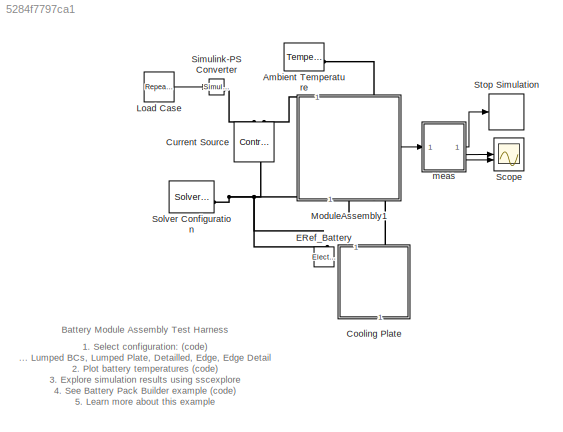
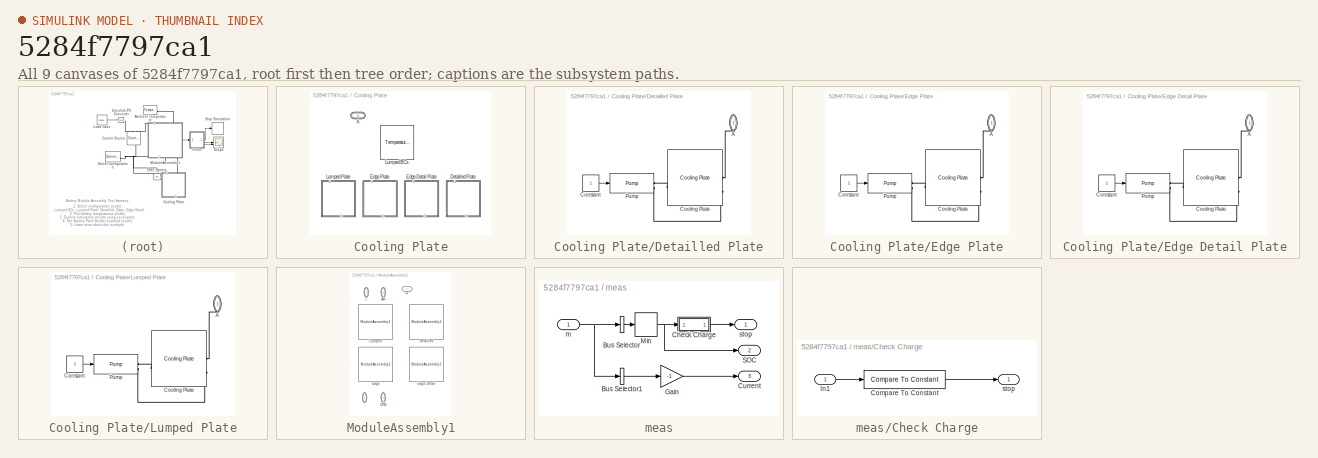
[diagram: thumbnail index - all 9 canvases of the model, root first then tree order]
MODEL slx_5284f7797ca1
KIND model
CONFIG AbsTol = 1e-3
CONFIG SolverName = VariableStepAuto
CONFIG StopTime = 2000
BLOCK [Reference] Ambient Temperature  REF=fl_lib/Thermal/Thermal Sources/Temperature Source
  NameLocation = left
  SourceBlock = fl_lib/Thermal/Thermal Sources/Temperature Source
  SourceType = Temperature Source
BLOCK [SubSystem] Cooling Plate
  AttributesFormatString = %<LabelModeActiveChoice>
  LabelModeActiveChoice = Lumped_BCs
  NameLocation = left
  Variant = on
  VariantControl = Lumped_BCs
  VariantControlMode = label
BLOCK [PMIOPort] Cooling Plate/A
  Side = Left
BLOCK [SubSystem] Cooling Plate/Detailled Plate
  VariantControl = Detailled_Plate
BLOCK [PMIOPort] Cooling Plate/Detailled Plate/A
  NameLocation = left
  Side = Left
BLOCK [Constant] Cooling Plate/Detailled Plate/Constant
BLOCK [Reference] Cooling Plate/Detailled Plate/Cooling Plate  REF=cooling_system_components/Cooling Plate  (lib defined in slx_1e8e36c102dd)
  SourceBlock = cooling_system_components/Cooling Plate
BLOCK [Reference] Cooling Plate/Detailled Plate/Pump  REF=cooling_system_components/Pump  (lib defined in slx_1e8e36c102dd)
  SourceBlock = cooling_system_components/Pump
BLOCK [SubSystem] Cooling Plate/Edge Detail Plate
  VariantControl = Edge_Detail_Plate
BLOCK [PMIOPort] Cooling Plate/Edge Detail Plate/A
  NameLocation = left
  Side = Left
BLOCK [Constant] Cooling Plate/Edge Detail Plate/Constant
BLOCK [Reference] Cooling Plate/Edge Detail Plate/Cooling Plate  REF=cooling_system_components/Cooling Plate  (lib defined in slx_1e8e36c102dd)
  SourceBlock = cooling_system_components/Cooling Plate
BLOCK [Reference] Cooling Plate/Edge Detail Plate/Pump  REF=cooling_system_components/Pump  (lib defined in slx_1e8e36c102dd)
  SourceBlock = cooling_system_components/Pump
BLOCK [SubSystem] Cooling Plate/Edge Plate
  VariantControl = Edge_Plate
BLOCK [PMIOPort] Cooling Plate/Edge Plate/A
  NameLocation = left
  Side = Left
BLOCK [Constant] Cooling Plate/Edge Plate/Constant
BLOCK [Reference] Cooling Plate/Edge Plate/Cooling Plate  REF=cooling_system_components/Cooling Plate  (lib defined in slx_1e8e36c102dd)
  SourceBlock = cooling_system_components/Cooling Plate
BLOCK [Reference] Cooling Plate/Edge Plate/Pump  REF=cooling_system_components/Pump  (lib defined in slx_1e8e36c102dd)
  SourceBlock = cooling_system_components/Pump
BLOCK [Reference] Cooling Plate/Lumped BCs  REF=cooling_system_components/Temperature Array4  (lib defined in slx_1e8e36c102dd)
Single Module
  SourceBlock = cooling_system_components/Temperature Array4\nSingle Module
BLOCK [SubSystem] Cooling Plate/Lumped Plate
  VariantControl = Lumped_Plate
BLOCK [PMIOPort] Cooling Plate/Lumped Plate/A
  NameLocation = left
  Side = Left
BLOCK [Constant] Cooling Plate/Lumped Plate/Constant
BLOCK [Reference] Cooling Plate/Lumped Plate/Cooling Plate  REF=cooling_system_components/Cooling Plate  (lib defined in slx_1e8e36c102dd)
  SourceBlock = cooling_system_components/Cooling Plate
BLOCK [Reference] Cooling Plate/Lumped Plate/Pump  REF=cooling_system_components/Pump  (lib defined in slx_1e8e36c102dd)
  SourceBlock = cooling_system_components/Pump
BLOCK [Reference] Current Source  REF=fl_lib/Electrical/Electrical Sources/Controlled Current
Source
  NameLocation = left
  SourceBlock = fl_lib/Electrical/Electrical Sources/Controlled Current\nSource
  SourceType = Controlled Current\nSource
BLOCK [Reference] ERef_Battery  REF=fl_lib/Electrical/Electrical Elements/Electrical Reference
  LibrarySourceBlock = ee_lib/Connectors &\nReferences/Electrical Reference
  NameLocation = left
  SourceBlock = fl_lib/Electrical/Electrical Elements/Electrical Reference
  SourceType = Electrical Reference
BLOCK [Reference] Load Case  REF=simulink/Sources/Repeating
Sequence
  SourceBlock = simulink/Sources/Repeating\nSequence
  SourceType = Repeating table
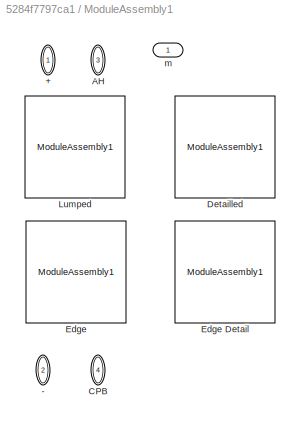
BLOCK [SubSystem] ModuleAssembly1
  AttributesFormatString = %<LabelModeActiveChoice>
  LabelModeActiveChoice = Lumped
  PortSchema = {"entries":[{"content":{"sides":[{"content":{"connectorIds":["LConn1","LConn2"]},"type":"ConnectorPlacement.EquallySpacedRectSide","uuid":"bc91a472-35c0-4041-89a6-b649b08794f0"},{"content":{"connectorIds":["RConn1","RConn2"],"side":"RIGHT"},"type":"ConnectorPlacement.EquallySpacedRectSide","uuid":"4a390b53-12a2-4d2f-9537-abc76db307f8"},{"content":{"connectorIds":[],"side":"TOP"},"type":"ConnectorP...<+413ch>
  Variant = on
  VariantControl = Choice
  VariantControlMode = label
BLOCK [PMIOPort] ModuleAssembly1/+
  NameLocation = left
  Side = Left
BLOCK [PMIOPort] ModuleAssembly1/-
  NameLocation = left
  Port = 2
  Side = Right
BLOCK [PMIOPort] ModuleAssembly1/AH
  NameLocation = left
  Port = 3
  Side = Left
BLOCK [PMIOPort] ModuleAssembly1/CPB
  NameLocation = left
  Port = 4
  Side = Right
BLOCK [Reference] ModuleAssembly1/Detailled  REF=pack_5p48s8p_detailled_Thr_library/ModuleAssembly1
  SourceBlock = pack_5p48s8p_detailled_Thr_library/ModuleAssembly1
BLOCK [Reference] ModuleAssembly1/Edge  REF=pack_5p48s8p_1g10g1_Thr_library/ModuleAssembly1
  SourceBlock = pack_5p48s8p_1g10g1_Thr_library/ModuleAssembly1
BLOCK [Reference] ModuleAssembly1/Edge Detail  REF=pack_5p48s8p_1g10g1_5g1g5_Thr_library/ModuleAssembly1
  SourceBlock = pack_5p48s8p_1g10g1_5g1g5_Thr_library/ModuleAssembly1
BLOCK [Reference] ModuleAssembly1/Lumped  REF=pack_5p48s8p_Thr_library/ModuleAssembly1
  SourceBlock = pack_5p48s8p_Thr_library/ModuleAssembly1
BLOCK [Outport] ModuleAssembly1/m
BLOCK [Scope] Scope
  ActiveDisplayYMaximum = 1.0874999999999988
  ActiveDisplayYMinimum = 0.2125000000000116
  Floating = off
  GraphicalSettings = {"Style":{"BackgroundColor":[0.12941176470588237,0.12941176470588237,0.12941176470588237],"AxesColor":[0.07058823529411765,0.07058823529411765,0.07058823529411765],"LabelsColor":[0.8509803921568627,0.8509803921568627,0.8509803921568627],"PreserveColors":false,"Visible":[true,true,true,true,true,true,true,true,true,true,true,true],"LineStyle":["-","-","-","-","-","-","-","-","-","-","-","-"],"LineW...<+3435ch>
  LayoutDimensionsString = [2 1]
  MultipleDisplayCache = [{"MaxYLimMag":1.0874999999999988,"MaxYLimReal":1.0874999999999988,"MinYLimMag":0.2125000000000116,"MinYLimReal":0.2125000000000116,"PlotAsMagnitudePhase":false,"ShowGrid":true,"ShowLegend":false,"Title":"Battery SOC","YLabel":""},{"MaxYLimMag":12.819863651878878,"MaxYLimReal":12.819863651878878,"MinYLimMag":0,"MinYLimReal":-1.4244292946532084,"PlotAsMagnitudePhase":false,"ShowGrid":true,"ShowLege...<+59ch>
  NumInputPorts = 2
  ScopeFrameLocation = window
  Title = Battery SOC
  WasSavedAsWebScope = on
  WindowPosition = [361.000000,486.000000,487.000000,420.000000,]
BLOCK [Reference] Simulink-PS Converter  REF=nesl_utility/Simulink-PS
Converter
  SourceBlock = nesl_utility/Simulink-PS\nConverter
  SourceType = Simulink-PS\nConverter
BLOCK [Reference] Solver Configuration  REF=nesl_utility/Solver
Configuration
  SourceBlock = nesl_utility/Solver\nConfiguration
  SourceType = Solver\nConfiguration
BLOCK [Stop] Stop Simulation
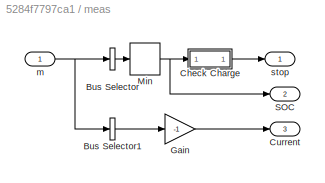
BLOCK [SubSystem] meas
BLOCK [BusSelector] meas/Bus Selector
  OutputAsBus = on
  OutputSignals = socC.M1
BLOCK [BusSelector] meas/Bus Selector1
  OutputAsBus = on
  OutputSignals = i.M1
BLOCK [SubSystem] meas/Check Charge
BLOCK [Reference] meas/Check Charge/Compare To Constant  REF=simulink/Logic and Bit
Operations/Compare
To Constant
  SourceBlock = simulink/Logic and Bit\nOperations/Compare\nTo Constant
  SourceType = Compare To Constant
BLOCK [Inport] meas/Check Charge/In1
BLOCK [Outport] meas/Check Charge/stop
  VectorParamsAs1DForOutWhenUnconnected = off
BLOCK [Outport] meas/Current
  Port = 3
BLOCK [Gain] meas/Gain
  Gain = -1
BLOCK [MinMax] meas/Min
BLOCK [Outport] meas/SOC
  Port = 2
BLOCK [Inport] meas/m
BLOCK [Outport] meas/stop
ANNOTATION (root): 1. Select configuration: ( code ) ... Lumped BCs , Lumped Plate, Detailled , Edge , Edge Detail 2. Plot battery temperatures ( code ) 3. Explore simulation results using sscexplore 4. See Battery Pack Builder example ( code ) 5. Learn more about this example
ANNOTATION (root): Battery Module Assembly Test Harness
LINE Cooling Plate/Detailled Plate/Constant:1 -> Cooling Plate/Detailled Plate/Pump:1
LINE Cooling Plate/Edge Detail Plate/Constant:1 -> Cooling Plate/Edge Detail Plate/Pump:1
LINE Cooling Plate/Edge Plate/Constant:1 -> Cooling Plate/Edge Plate/Pump:1
LINE Cooling Plate/Lumped Plate/Constant:1 -> Cooling Plate/Lumped Plate/Pump:1
LINE Load Case:1 -> Simulink-PS Converter:1
LINE ModuleAssembly1:1 -> meas:1
LINE meas/Bus Selector1:1 -> meas/Gain:1
LINE meas/Bus Selector:1 -> meas/Min:1
LINE meas/Check Charge/Compare To Constant:1 -> meas/Check Charge/stop:1
LINE meas/Check Charge/In1:1 -> meas/Check Charge/Compare To Constant:1
LINE meas/Check Charge:1 -> meas/stop:1
LINE meas/Gain:1 -> meas/Current:1
NET meas/Min:1 -> meas/Check Charge:1, meas/SOC:1
NET meas/m:1 -> meas/Bus Selector1:1, meas/Bus Selector:1
LINE meas:1 -> Stop Simulation:1
LINE meas:2 -> Scope:1
LINE meas:3 -> Scope:2
PLINE Ambient Temperature:LConn1 -- ModuleAssembly1:LConn2
PLINE Cooling Plate/Detailled Plate/A:RConn1 -- Cooling Plate/Detailled Plate/Cooling Plate:LConn1
PLINE Cooling Plate/Detailled Plate/Cooling Plate:LConn2 -- Cooling Plate/Detailled Plate/Pump:RConn2
PLINE Cooling Plate/Detailled Plate/Cooling Plate:RConn1 -- Cooling Plate/Detailled Plate/Pump:RConn1
PLINE Cooling Plate/Edge Detail Plate/A:RConn1 -- Cooling Plate/Edge Detail Plate/Cooling Plate:LConn1
PLINE Cooling Plate/Edge Detail Plate/Cooling Plate:LConn2 -- Cooling Plate/Edge Detail Plate/Pump:RConn2
PLINE Cooling Plate/Edge Detail Plate/Cooling Plate:RConn1 -- Cooling Plate/Edge Detail Plate/Pump:RConn1
PLINE Cooling Plate/Edge Plate/A:RConn1 -- Cooling Plate/Edge Plate/Cooling Plate:LConn1
PLINE Cooling Plate/Edge Plate/Cooling Plate:LConn2 -- Cooling Plate/Edge Plate/Pump:RConn2
PLINE Cooling Plate/Edge Plate/Cooling Plate:RConn1 -- Cooling Plate/Edge Plate/Pump:RConn1
PLINE Cooling Plate/Lumped Plate/A:RConn1 -- Cooling Plate/Lumped Plate/Cooling Plate:LConn1
PLINE Cooling Plate/Lumped Plate/Cooling Plate:LConn2 -- Cooling Plate/Lumped Plate/Pump:RConn2
PLINE Cooling Plate/Lumped Plate/Cooling Plate:RConn1 -- Cooling Plate/Lumped Plate/Pump:RConn1
PLINE Cooling Plate:LConn1 -- ModuleAssembly1:RConn2
PNET net1: Current Source:LConn1 -- ERef_Battery:LConn1 -- ModuleAssembly1:RConn1 -- Solver Configuration:RConn1
PLINE Current Source:RConn1 -- Simulink-PS Converter:RConn1
PLINE Current Source:RConn2 -- ModuleAssembly1:LConn1
note: NET lines group one-source signal fan-out (src -> all destinations, sorted); 1:1 wires keep LINE; PNET lines group multi-terminal physical nets as a canonical sorted terminal list (undirected conserving connections); 2-terminal nets keep the pairwise PLINE form
